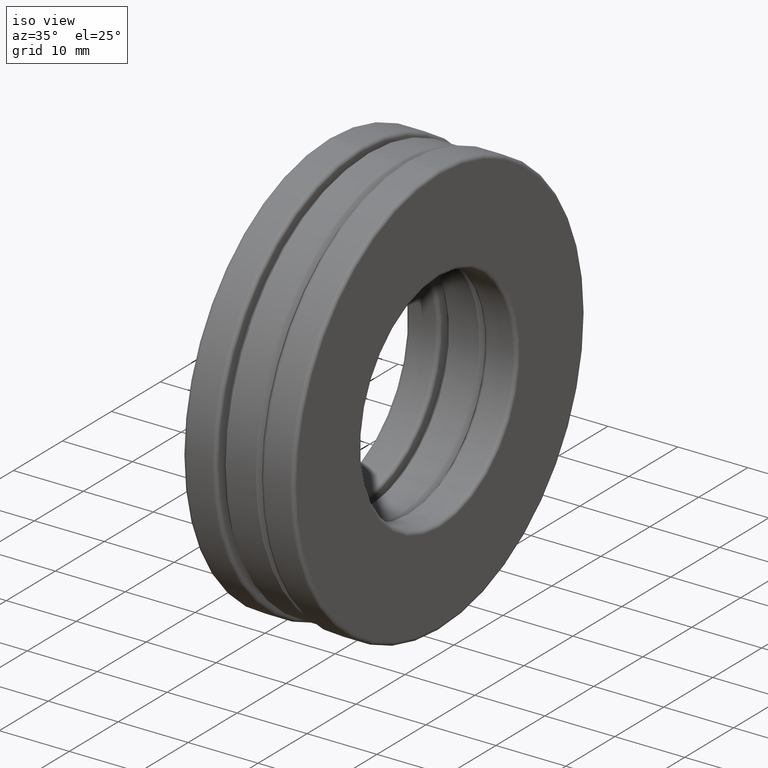
[diagram: clean part render]
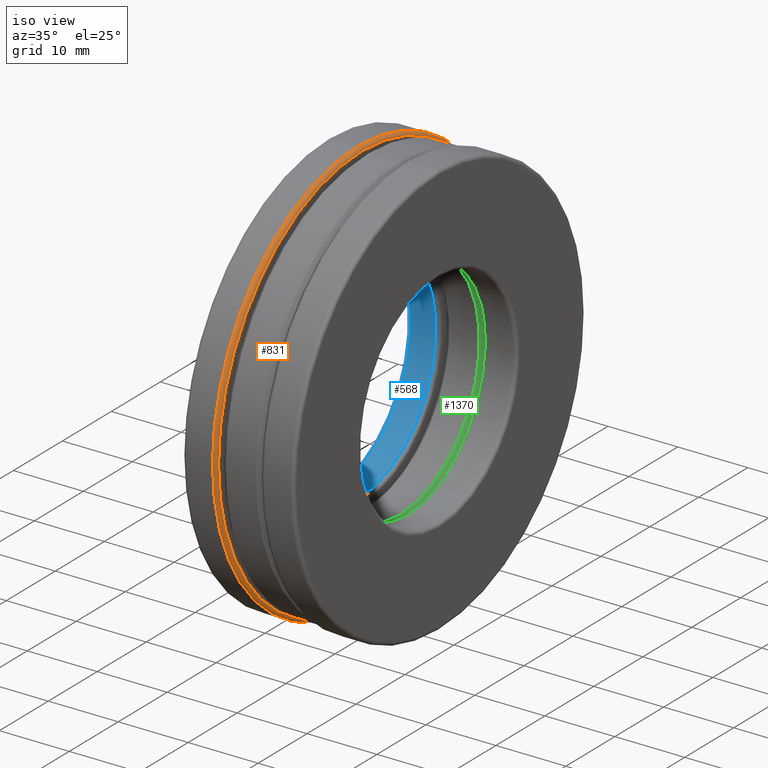
[diagram: same view with three faces highlighted in distinct colors, each labeled with its STEP entity id]
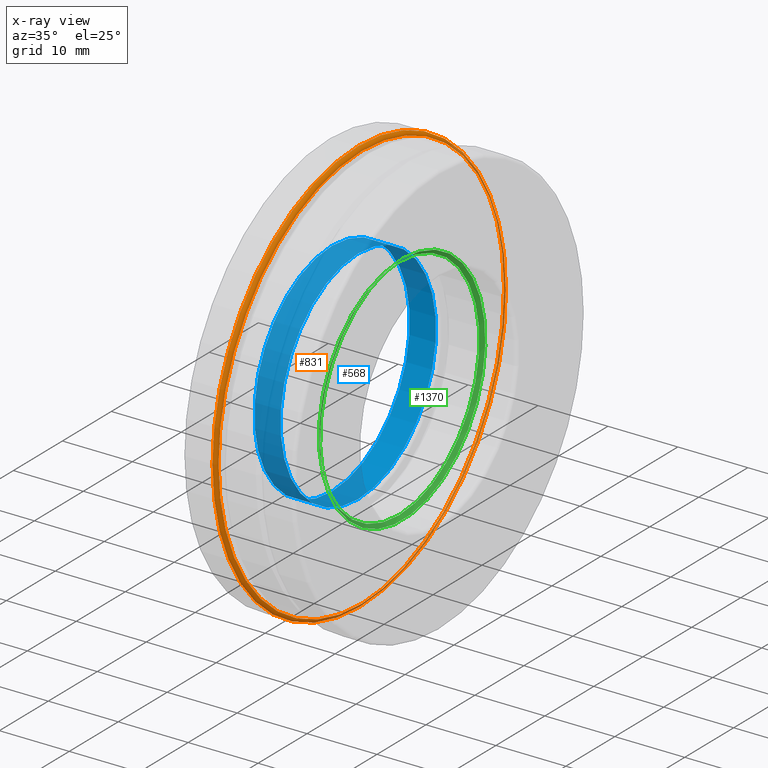
[diagram: x-ray of the same camera — body ghosted, the three highlighted faces saturated]
A machine part, iso view with three faces highlighted in distinct colors.
The next image is the same camera in x-ray (body ghosted, the three faces saturated) — at least one of them is partly hidden behind the body in this view.
Their STEP definitions:

[orange] entity #831 — the highlighted toroidal blend (fillet) surface has major radius 29.2576 mm and minor (blend) radius 0.508 mm.
#18 = CARTESIAN_POINT ( 'NONE',  ( -0.1250000000000000600, 0.0000000000000000000, 1.151875000000000200 ) ) ;
#120 = CIRCLE ( 'NONE', #529, 1.151875000000000200 ) ;
#241 = EDGE_LOOP ( 'NONE', ( #1057 ) ) ;
#312 = VERTEX_POINT ( 'NONE', #18 ) ;
#361 = CARTESIAN_POINT ( 'NONE',  ( -0.1450000000000000200, 0.0000000000000000000, 1.171875000000000000 ) ) ;
#362 = CARTESIAN_POINT ( 'NONE',  ( -0.1450000000000000200, 0.0000000000000000000, 0.0000000000000000000 ) ) ;
#406 = DIRECTION ( 'NONE',  ( 0.0000000000000000000, 0.0000000000000000000, 1.000000000000000000 ) ) ;
#479 = EDGE_LOOP ( 'NONE', ( #1036 ) ) ;
#529 = AXIS2_PLACEMENT_3D ( 'NONE', #1103, #876, #406 ) ;
#652 = FACE_OUTER_BOUND ( 'NONE', #241, .T. ) ;
#708 = DIRECTION ( 'NONE',  ( -1.000000000000000000, -0.0000000000000000000, -0.0000000000000000000 ) ) ;
#776 = DIRECTION ( 'NONE',  ( 0.0000000000000000000, 0.0000000000000000000, 1.000000000000000000 ) ) ;
#793 = DIRECTION ( 'NONE',  ( -1.000000000000000000, -0.0000000000000000000, -0.0000000000000000000 ) ) ;
#831 = ADVANCED_FACE ( 'NONE', ( #1104, #652 ), #975, .T. ) ;
#838 = EDGE_CURVE ( 'NONE', #1159, #1159, #1010, .T. ) ;
#876 = DIRECTION ( 'NONE',  ( -1.000000000000000000, -0.0000000000000000000, -0.0000000000000000000 ) ) ;
#927 = DIRECTION ( 'NONE',  ( 0.0000000000000000000, 0.0000000000000000000, 1.000000000000000000 ) ) ;
#975 = TOROIDAL_SURFACE ( 'NONE', #1167, 1.151875000000000200, 0.01999999999999993100 ) ;
#976 = AXIS2_PLACEMENT_3D ( 'NONE', #362, #708, #927 ) ;
#1010 = CIRCLE ( 'NONE', #976, 1.171875000000000000 ) ;
#1017 = CARTESIAN_POINT ( 'NONE',  ( -0.1450000000000000200, 0.0000000000000000000, 0.0000000000000000000 ) ) ;
#1036 = ORIENTED_EDGE ( 'NONE', *, *, #838, .F. ) ;
#1057 = ORIENTED_EDGE ( 'NONE', *, *, #1171, .T. ) ;
#1103 = CARTESIAN_POINT ( 'NONE',  ( -0.1250000000000000600, 0.0000000000000000000, 0.0000000000000000000 ) ) ;
#1104 = FACE_OUTER_BOUND ( 'NONE', #479, .T. ) ;
#1159 = VERTEX_POINT ( 'NONE', #361 ) ;
#1167 = AXIS2_PLACEMENT_3D ( 'NONE', #1017, #793, #776 ) ;
#1171 = EDGE_CURVE ( 'NONE', #312, #312, #120, .T. ) ;

[blue] entity #568 — the highlighted cylindrical surface (bore or boss wall) has radius 15.875 mm, axis along (-1, -0, -0).
#39 = DIRECTION ( 'NONE',  ( -1.000000000000000000, -0.0000000000000000000, -0.0000000000000000000 ) ) ;
#157 = ORIENTED_EDGE ( 'NONE', *, *, #216, .T. ) ;
#216 = EDGE_CURVE ( 'NONE', #1061, #1061, #585, .T. ) ;
#279 = DIRECTION ( 'NONE',  ( 0.0000000000000000000, 0.0000000000000000000, 1.000000000000000000 ) ) ;
#377 = CARTESIAN_POINT ( 'NONE',  ( -0.2925000000000000400, 0.0000000000000000000, 0.0000000000000000000 ) ) ;
#412 = DIRECTION ( 'NONE',  ( -1.000000000000000000, -0.0000000000000000000, -0.0000000000000000000 ) ) ;
#530 = DIRECTION ( 'NONE',  ( 0.0000000000000000000, 0.0000000000000000000, 1.000000000000000000 ) ) ;
#568 = ADVANCED_FACE ( 'NONE', ( #960, #1091 ), #1341, .F. ) ;
#585 = CIRCLE ( 'NONE', #663, 0.6250000000000000000 ) ;
#663 = AXIS2_PLACEMENT_3D ( 'NONE', #377, #39, #1291 ) ;
#693 = AXIS2_PLACEMENT_3D ( 'NONE', #1110, #412, #279 ) ;
#791 = ORIENTED_EDGE ( 'NONE', *, *, #1337, .F. ) ;
#819 = CIRCLE ( 'NONE', #693, 0.6250000000000000000 ) ;
#901 = DIRECTION ( 'NONE',  ( -1.000000000000000000, -0.0000000000000000000, -0.0000000000000000000 ) ) ;
#960 = FACE_OUTER_BOUND ( 'NONE', #1200, .T. ) ;
#1044 = AXIS2_PLACEMENT_3D ( 'NONE', #1338, #901, #530 ) ;
#1061 = VERTEX_POINT ( 'NONE', #1124 ) ;
#1072 = EDGE_LOOP ( 'NONE', ( #791 ) ) ;
#1080 = VERTEX_POINT ( 'NONE', #1259 ) ;
#1091 = FACE_OUTER_BOUND ( 'NONE', #1072, .T. ) ;
#1110 = CARTESIAN_POINT ( 'NONE',  ( -0.1450000000000000500, 0.0000000000000000000, 0.0000000000000000000 ) ) ;
#1124 = CARTESIAN_POINT ( 'NONE',  ( -0.2925000000000000400, 0.0000000000000000000, 0.6250000000000000000 ) ) ;
#1200 = EDGE_LOOP ( 'NONE', ( #157 ) ) ;
#1259 = CARTESIAN_POINT ( 'NONE',  ( -0.1450000000000000500, 0.0000000000000000000, 0.6250000000000000000 ) ) ;
#1291 = DIRECTION ( 'NONE',  ( 0.0000000000000000000, 0.0000000000000000000, 1.000000000000000000 ) ) ;
#1337 = EDGE_CURVE ( 'NONE', #1080, #1080, #819, .T. ) ;
#1338 = CARTESIAN_POINT ( 'NONE',  ( 0.0000000000000000000, 0.0000000000000000000, 0.0000000000000000000 ) ) ;
#1341 = CYLINDRICAL_SURFACE ( 'NONE', #1044, 0.6250000000000000000 ) ;

[green] entity #1370 — the highlighted conical surface has half-angle 45 deg.
#11 = EDGE_CURVE ( 'NONE', #721, #721, #638, .T. ) ;
#164 = EDGE_CURVE ( 'NONE', #1452, #1452, #1390, .T. ) ;
#218 = AXIS2_PLACEMENT_3D ( 'NONE', #1351, #1233, #1345 ) ;
#318 = DIRECTION ( 'NONE',  ( 0.0000000000000000000, 0.0000000000000000000, -1.000000000000000000 ) ) ;
#371 = DIRECTION ( 'NONE',  ( 0.0000000000000000000, 0.0000000000000000000, 1.000000000000000000 ) ) ;
#430 = FACE_OUTER_BOUND ( 'NONE', #1152, .T. ) ;
#451 = CONICAL_SURFACE ( 'NONE', #748, 0.6650000000000001500, 0.7853981633974496100 ) ;
#554 = CARTESIAN_POINT ( 'NONE',  ( 0.1050000000000000500, 0.0000000000000000000, 0.6650000000000001500 ) ) ;
#638 = CIRCLE ( 'NONE', #218, 0.6450000000000001300 ) ;
#673 = CARTESIAN_POINT ( 'NONE',  ( 0.08500000000000004800, 0.0000000000000000000, 0.6450000000000001300 ) ) ;
#721 = VERTEX_POINT ( 'NONE', #673 ) ;
#724 = DIRECTION ( 'NONE',  ( -1.000000000000000000, -0.0000000000000000000, -0.0000000000000000000 ) ) ;
#748 = AXIS2_PLACEMENT_3D ( 'NONE', #1461, #899, #318 ) ;
#840 = AXIS2_PLACEMENT_3D ( 'NONE', #1415, #724, #371 ) ;
#899 = DIRECTION ( 'NONE',  ( 1.000000000000000000, 0.0000000000000000000, 0.0000000000000000000 ) ) ;
#1051 = ORIENTED_EDGE ( 'NONE', *, *, #11, .T. ) ;
#1062 = FACE_BOUND ( 'NONE', #1293, .T. ) ;
#1152 = EDGE_LOOP ( 'NONE', ( #1268 ) ) ;
#1233 = DIRECTION ( 'NONE',  ( -1.000000000000000000, -0.0000000000000000000, -0.0000000000000000000 ) ) ;
#1268 = ORIENTED_EDGE ( 'NONE', *, *, #164, .F. ) ;
#1293 = EDGE_LOOP ( 'NONE', ( #1051 ) ) ;
#1345 = DIRECTION ( 'NONE',  ( 0.0000000000000000000, 0.0000000000000000000, 1.000000000000000000 ) ) ;
#1351 = CARTESIAN_POINT ( 'NONE',  ( 0.08500000000000004800, 0.0000000000000000000, 0.0000000000000000000 ) ) ;
#1370 = ADVANCED_FACE ( 'NONE', ( #1062, #430 ), #451, .F. ) ;
#1390 = CIRCLE ( 'NONE', #840, 0.6650000000000001500 ) ;
#1415 = CARTESIAN_POINT ( 'NONE',  ( 0.1050000000000000500, 0.0000000000000000000, 0.0000000000000000000 ) ) ;
#1452 = VERTEX_POINT ( 'NONE', #554 ) ;
#1461 = CARTESIAN_POINT ( 'NONE',  ( 0.1050000000000000500, 0.0000000000000000000, 0.0000000000000000000 ) ) ;